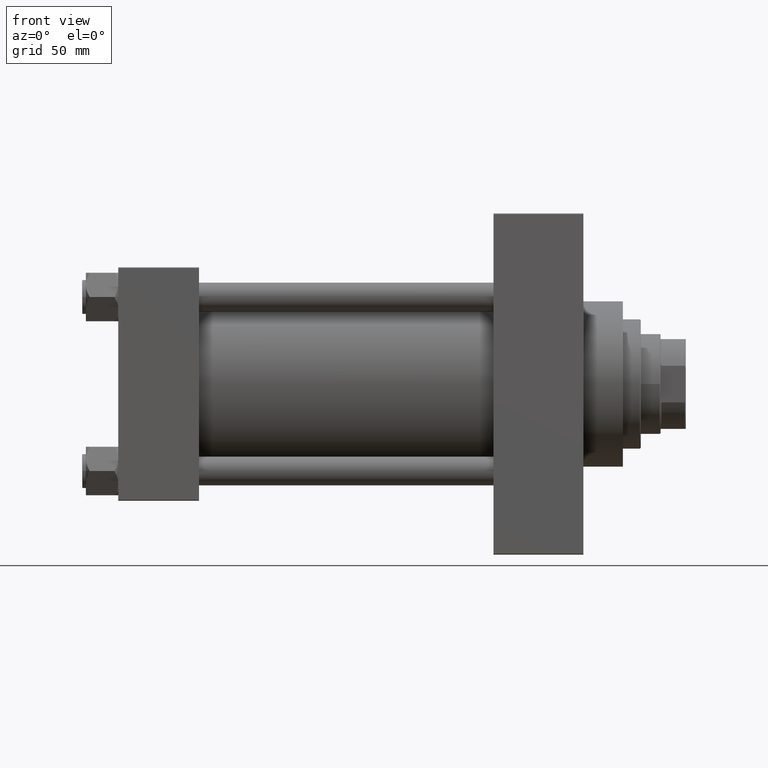
[diagram: clean part render]
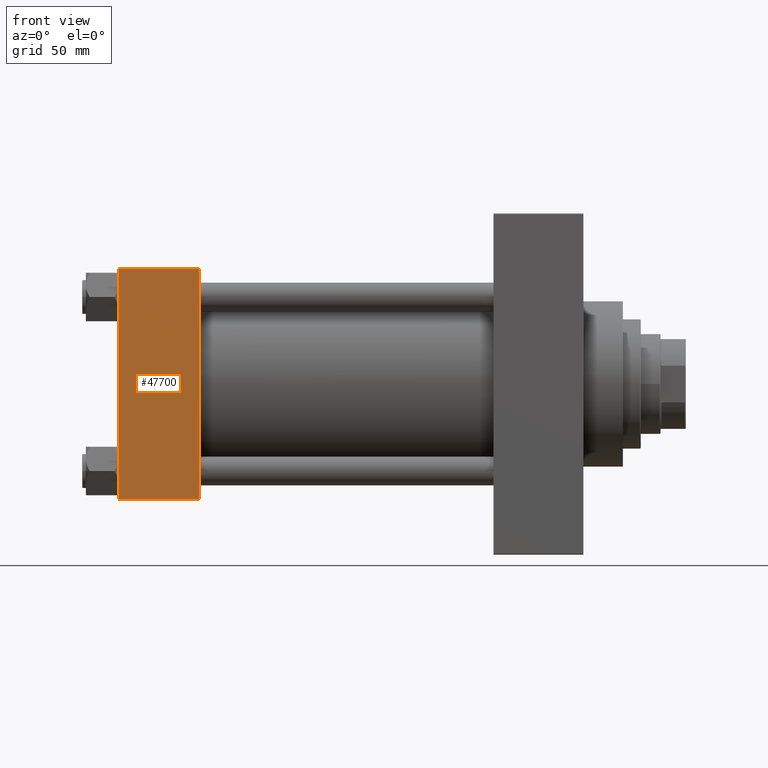
[diagram: same view with one face highlighted and labeled with its STEP entity id]
A machine part, front view. The second image highlights one B-rep face of the part: STEP entity #47700.
In plain terms, the highlighted planar face has unit normal (0, 1, 0).
Its self-contained STEP definition (entity closure, byte-faithful):
#1086 = EDGE_CURVE ( 'NONE', #17475, #18828, #14655, .T. ) ;
#1823 = VERTEX_POINT ( 'NONE', #23371 ) ;
#6801 = DIRECTION ( 'NONE',  ( 0.000000000000000000, -0.000000000000000000, 1.000000000000000000 ) ) ;
#7632 = ORIENTED_EDGE ( 'NONE', *, *, #34063, .T. ) ;
#7645 = DIRECTION ( 'NONE',  ( 0.000000000000000000, 0.000000000000000000, -1.000000000000000000 ) ) ;
#10481 = ORIENTED_EDGE ( 'NONE', *, *, #42618, .F. ) ;
#11004 = ORIENTED_EDGE ( 'NONE', *, *, #1086, .T. ) ;
#13125 = LINE ( 'NONE', #27380, #38056 ) ;
#14655 = LINE ( 'NONE', #44596, #45823 ) ;
#17440 = PLANE ( 'NONE',  #34277 ) ;
#17475 = VERTEX_POINT ( 'NONE', #29258 ) ;
#17983 = LINE ( 'NONE', #29098, #41142 ) ;
#18828 = VERTEX_POINT ( 'NONE', #41357 ) ;
#19717 = VECTOR ( 'NONE', #34202, 1000.000000000000000 ) ;
#21067 = FACE_OUTER_BOUND ( 'NONE', #25215, .T. ) ;
#23371 = CARTESIAN_POINT ( 'NONE',  ( 45.00000000000000000, -65.00000000000000000, -64.49999999999991473 ) ) ;
#24459 = CARTESIAN_POINT ( 'NONE',  ( 45.00000000000000000, -65.00000000000000000, 65.00000000000000000 ) ) ;
#25167 = DIRECTION ( 'NONE',  ( -0.000000000000000000, 1.000000000000000000, 0.000000000000000000 ) ) ;
#25215 = EDGE_LOOP ( 'NONE', ( #11004, #7632, #10481, #29363 ) ) ;
#27380 = CARTESIAN_POINT ( 'NONE',  ( 45.00000000000000000, -65.00000000000000000, 64.50000000000000000 ) ) ;
#29098 = CARTESIAN_POINT ( 'NONE',  ( 45.00000000000000000, -65.00000000000000000, 65.00000000000000000 ) ) ;
#29258 = CARTESIAN_POINT ( 'NONE',  ( 0.000000000000000000, -65.00000000000000000, 64.50000000000000000 ) ) ;
#29363 = ORIENTED_EDGE ( 'NONE', *, *, #42719, .T. ) ;
#30619 = VERTEX_POINT ( 'NONE', #31824 ) ;
#31824 = CARTESIAN_POINT ( 'NONE',  ( 45.00000000000000000, -65.00000000000000000, 64.50000000000000000 ) ) ;
#34063 = EDGE_CURVE ( 'NONE', #18828, #1823, #41450, .T. ) ;
#34202 = DIRECTION ( 'NONE',  ( 1.000000000000000000, 0.000000000000000000, 0.000000000000000000 ) ) ;
#34277 = AXIS2_PLACEMENT_3D ( 'NONE', #24459, #25167, #6801 ) ;
#36797 = DIRECTION ( 'NONE',  ( 0.000000000000000000, 0.000000000000000000, -1.000000000000000000 ) ) ;
#38056 = VECTOR ( 'NONE', #38946, 1000.000000000000000 ) ;
#38946 = DIRECTION ( 'NONE',  ( -1.000000000000000000, 0.000000000000000000, 0.000000000000000000 ) ) ;
#41142 = VECTOR ( 'NONE', #36797, 1000.000000000000000 ) ;
#41357 = CARTESIAN_POINT ( 'NONE',  ( 0.000000000000000000, -65.00000000000000000, -64.49999999999991473 ) ) ;
#41450 = LINE ( 'NONE', #45330, #19717 ) ;
#42618 = EDGE_CURVE ( 'NONE', #30619, #1823, #17983, .T. ) ;
#42719 = EDGE_CURVE ( 'NONE', #30619, #17475, #13125, .T. ) ;
#44596 = CARTESIAN_POINT ( 'NONE',  ( 0.000000000000000000, -65.00000000000000000, 65.00000000000000000 ) ) ;
#45330 = CARTESIAN_POINT ( 'NONE',  ( 45.00000000000000000, -65.00000000000000000, -64.49999999999991473 ) ) ;
#45823 = VECTOR ( 'NONE', #7645, 1000.000000000000000 ) ;
#47700 = ADVANCED_FACE ( 'NONE', ( #21067 ), #17440, .F. ) ;